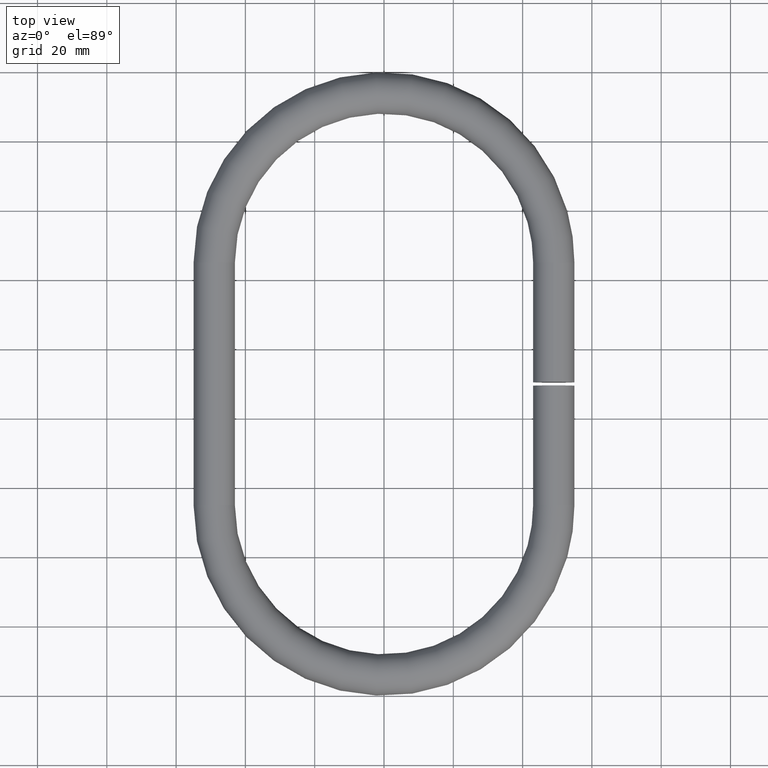
[diagram: clean part render]
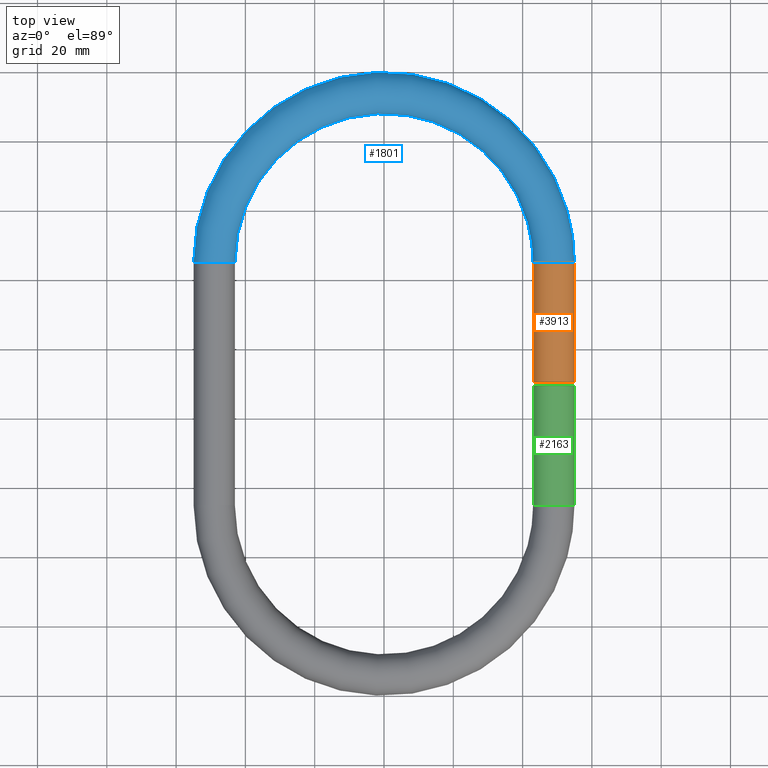
[diagram: same view with three faces highlighted in distinct colors, each labeled with its STEP entity id]
A machine part, top view with three faces highlighted in distinct colors.
Their STEP definitions:

[orange] entity #3913 — the highlighted cylindrical surface (bore or boss wall) has radius 6 mm, axis along (-0, -1, 0).
#5 = FACE_OUTER_BOUND ( 'NONE', #8025, .T. ) ;
#132 = VERTEX_POINT ( 'NONE', #4706 ) ;
#369 = CARTESIAN_POINT ( 'NONE',  ( 49.00000000000001400, 125.0000000000000000, 0.0000000000000000000 ) ) ;
#385 = FACE_OUTER_BOUND ( 'NONE', #2928, .T. ) ;
#514 = DIRECTION ( 'NONE',  ( -9.912705577010325500E-017, -1.000000000000000000, 0.0000000000000000000 ) ) ;
#1596 = VERTEX_POINT ( 'NONE', #3152 ) ;
#1858 = EDGE_CURVE ( 'NONE', #1596, #1596, #7074, .T. ) ;
#2928 = EDGE_LOOP ( 'NONE', ( #9102 ) ) ;
#3143 = AXIS2_PLACEMENT_3D ( 'NONE', #5986, #8980, #8266 ) ;
#3152 = CARTESIAN_POINT ( 'NONE',  ( 49.00000000000001400, 125.0000000000000000, -6.000000000000000900 ) ) ;
#3817 = CYLINDRICAL_SURFACE ( 'NONE', #9306, 5.999999999999998200 ) ;
#3913 = ADVANCED_FACE ( 'NONE', ( #385, #5 ), #3817, .T. ) ;
#4403 = CIRCLE ( 'NONE', #3143, 6.000000000000000900 ) ;
#4650 = DIRECTION ( 'NONE',  ( -1.836970198721029700E-016, 1.000000000000000000, 0.0000000000000000000 ) ) ;
#4706 = CARTESIAN_POINT ( 'NONE',  ( 49.00000000000001400, 90.50000000000000000, 6.000000000000000900 ) ) ;
#4977 = AXIS2_PLACEMENT_3D ( 'NONE', #8558, #4650, #7773 ) ;
#5986 = CARTESIAN_POINT ( 'NONE',  ( 49.00000000000001400, 90.50000000000000000, 0.0000000000000000000 ) ) ;
#6128 = EDGE_CURVE ( 'NONE', #132, #132, #4403, .T. ) ;
#7074 = CIRCLE ( 'NONE', #4977, 6.000000000000000900 ) ;
#7773 = DIRECTION ( 'NONE',  ( 0.0000000000000000000, 0.0000000000000000000, -1.000000000000000000 ) ) ;
#8025 = EDGE_LOOP ( 'NONE', ( #8305 ) ) ;
#8175 = DIRECTION ( 'NONE',  ( 1.000000000000000000, 0.0000000000000000000, 0.0000000000000000000 ) ) ;
#8266 = DIRECTION ( 'NONE',  ( 0.0000000000000000000, 0.0000000000000000000, 1.000000000000000000 ) ) ;
#8305 = ORIENTED_EDGE ( 'NONE', *, *, #1858, .F. ) ;
#8558 = CARTESIAN_POINT ( 'NONE',  ( 49.00000000000001400, 125.0000000000000000, 0.0000000000000000000 ) ) ;
#8980 = DIRECTION ( 'NONE',  ( 0.0000000000000000000, 1.000000000000000000, 0.0000000000000000000 ) ) ;
#9102 = ORIENTED_EDGE ( 'NONE', *, *, #6128, .T. ) ;
#9306 = AXIS2_PLACEMENT_3D ( 'NONE', #369, #514, #8175 ) ;

[blue] entity #1801 — the highlighted toroidal blend (fillet) surface has major radius 49 mm and minor (blend) radius 6 mm.
#175 = CARTESIAN_POINT ( 'NONE',  ( -49.00000000000000700, 124.9999999999999900, -6.000000000000000900 ) ) ;
#885 = FACE_OUTER_BOUND ( 'NONE', #2299, .T. ) ;
#1050 = AXIS2_PLACEMENT_3D ( 'NONE', #5092, #1329, #6588 ) ;
#1329 = DIRECTION ( 'NONE',  ( -0.0000000000000000000, -0.0000000000000000000, -1.000000000000000000 ) ) ;
#1596 = VERTEX_POINT ( 'NONE', #3152 ) ;
#1801 = ADVANCED_FACE ( 'NONE', ( #2102, #885 ), #2803, .T. ) ;
#1858 = EDGE_CURVE ( 'NONE', #1596, #1596, #7074, .T. ) ;
#2102 = FACE_OUTER_BOUND ( 'NONE', #6969, .T. ) ;
#2299 = EDGE_LOOP ( 'NONE', ( #6759 ) ) ;
#2429 = VERTEX_POINT ( 'NONE', #175 ) ;
#2803 = TOROIDAL_SURFACE ( 'NONE', #1050, 49.00000000000000700, 6.000000000000000900 ) ;
#3152 = CARTESIAN_POINT ( 'NONE',  ( 49.00000000000001400, 125.0000000000000000, -6.000000000000000900 ) ) ;
#3559 = DIRECTION ( 'NONE',  ( 0.0000000000000000000, 0.0000000000000000000, -1.000000000000000000 ) ) ;
#4035 = AXIS2_PLACEMENT_3D ( 'NONE', #5784, #5754, #3559 ) ;
#4650 = DIRECTION ( 'NONE',  ( -1.836970198721029700E-016, 1.000000000000000000, 0.0000000000000000000 ) ) ;
#4977 = AXIS2_PLACEMENT_3D ( 'NONE', #8558, #4650, #7773 ) ;
#5092 = CARTESIAN_POINT ( 'NONE',  ( 0.0000000000000000000, 125.0000000000000000, 0.0000000000000000000 ) ) ;
#5754 = DIRECTION ( 'NONE',  ( 6.123233995736766000E-017, -1.000000000000000000, 0.0000000000000000000 ) ) ;
#5784 = CARTESIAN_POINT ( 'NONE',  ( -49.00000000000000700, 124.9999999999999900, 0.0000000000000000000 ) ) ;
#6588 = DIRECTION ( 'NONE',  ( -1.000000000000000000, 0.0000000000000000000, 0.0000000000000000000 ) ) ;
#6759 = ORIENTED_EDGE ( 'NONE', *, *, #1858, .T. ) ;
#6969 = EDGE_LOOP ( 'NONE', ( #7718 ) ) ;
#7074 = CIRCLE ( 'NONE', #4977, 6.000000000000000900 ) ;
#7718 = ORIENTED_EDGE ( 'NONE', *, *, #7913, .F. ) ;
#7773 = DIRECTION ( 'NONE',  ( 0.0000000000000000000, 0.0000000000000000000, -1.000000000000000000 ) ) ;
#7913 = EDGE_CURVE ( 'NONE', #2429, #2429, #9454, .T. ) ;
#8558 = CARTESIAN_POINT ( 'NONE',  ( 49.00000000000001400, 125.0000000000000000, 0.0000000000000000000 ) ) ;
#9454 = CIRCLE ( 'NONE', #4035, 6.000000000000000900 ) ;

[green] entity #2163 — the highlighted cylindrical surface (bore or boss wall) has radius 6 mm, axis along (-0, -1, 0).
#932 = ORIENTED_EDGE ( 'NONE', *, *, #8933, .T. ) ;
#1185 = DIRECTION ( 'NONE',  ( -1.836970198721029700E-016, 1.000000000000000000, 0.0000000000000000000 ) ) ;
#1709 = CARTESIAN_POINT ( 'NONE',  ( 49.00000000000000700, 89.50000000000000000, -6.000000000000000900 ) ) ;
#2163 = ADVANCED_FACE ( 'NONE', ( #4441, #2682 ), #5042, .T. ) ;
#2407 = CARTESIAN_POINT ( 'NONE',  ( 49.00000000000000700, 54.99999999999999300, -6.000000000000000900 ) ) ;
#2519 = AXIS2_PLACEMENT_3D ( 'NONE', #4454, #8235, #6743 ) ;
#2682 = FACE_OUTER_BOUND ( 'NONE', #8894, .T. ) ;
#2697 = DIRECTION ( 'NONE',  ( 1.000000000000000000, 0.0000000000000000000, 0.0000000000000000000 ) ) ;
#2902 = VERTEX_POINT ( 'NONE', #1709 ) ;
#3425 = CARTESIAN_POINT ( 'NONE',  ( 49.00000000000000700, 54.99999999999999300, 0.0000000000000000000 ) ) ;
#3562 = ORIENTED_EDGE ( 'NONE', *, *, #4562, .T. ) ;
#4441 = FACE_OUTER_BOUND ( 'NONE', #6696, .T. ) ;
#4454 = CARTESIAN_POINT ( 'NONE',  ( 49.00000000000000700, 89.50000000000000000, 0.0000000000000000000 ) ) ;
#4562 = EDGE_CURVE ( 'NONE', #2902, #2902, #8136, .T. ) ;
#5042 = CYLINDRICAL_SURFACE ( 'NONE', #8242, 5.999999999999998200 ) ;
#5071 = DIRECTION ( 'NONE',  ( -9.912705577010325500E-017, -1.000000000000000000, 0.0000000000000000000 ) ) ;
#6066 = AXIS2_PLACEMENT_3D ( 'NONE', #3425, #1185, #6506 ) ;
#6506 = DIRECTION ( 'NONE',  ( 0.0000000000000000000, 0.0000000000000000000, -1.000000000000000000 ) ) ;
#6599 = CARTESIAN_POINT ( 'NONE',  ( 49.00000000000001400, 125.0000000000000000, 0.0000000000000000000 ) ) ;
#6696 = EDGE_LOOP ( 'NONE', ( #932 ) ) ;
#6743 = DIRECTION ( 'NONE',  ( 0.0000000000000000000, 0.0000000000000000000, -1.000000000000000000 ) ) ;
#6794 = VERTEX_POINT ( 'NONE', #2407 ) ;
#7920 = CIRCLE ( 'NONE', #6066, 6.000000000000000900 ) ;
#8136 = CIRCLE ( 'NONE', #2519, 6.000000000000000900 ) ;
#8235 = DIRECTION ( 'NONE',  ( 0.0000000000000000000, -1.000000000000000000, 0.0000000000000000000 ) ) ;
#8242 = AXIS2_PLACEMENT_3D ( 'NONE', #6599, #5071, #2697 ) ;
#8894 = EDGE_LOOP ( 'NONE', ( #3562 ) ) ;
#8933 = EDGE_CURVE ( 'NONE', #6794, #6794, #7920, .T. ) ;